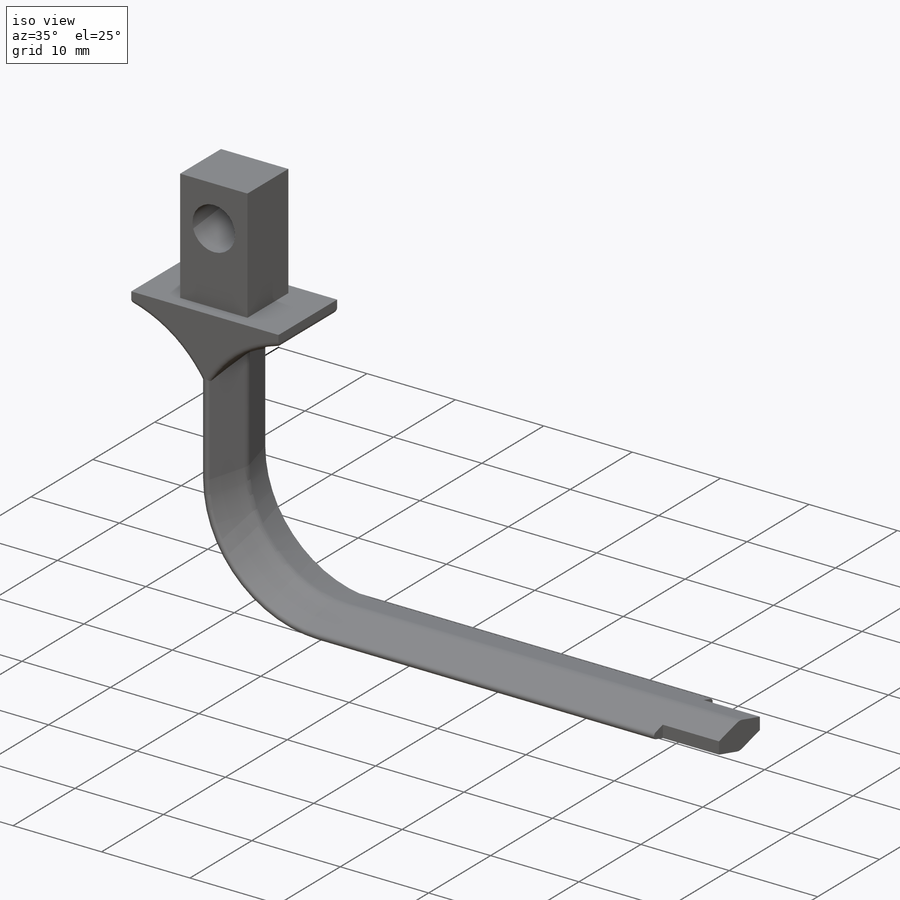
[diagram: iso view]
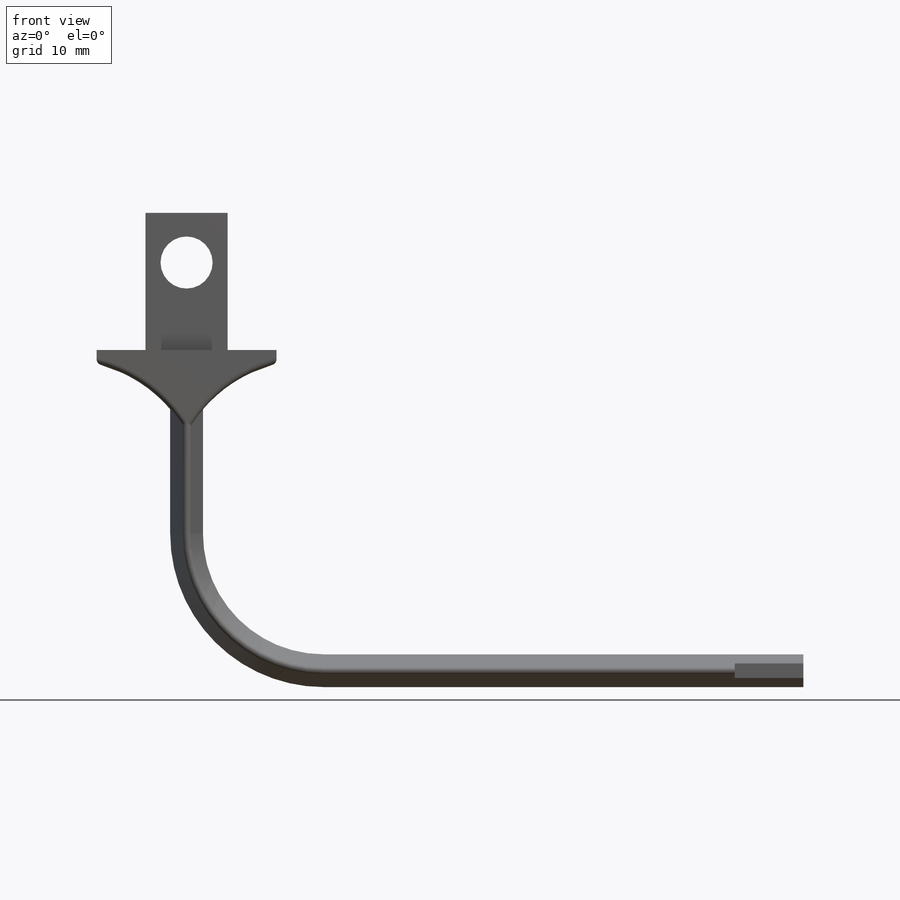
[diagram: front view]
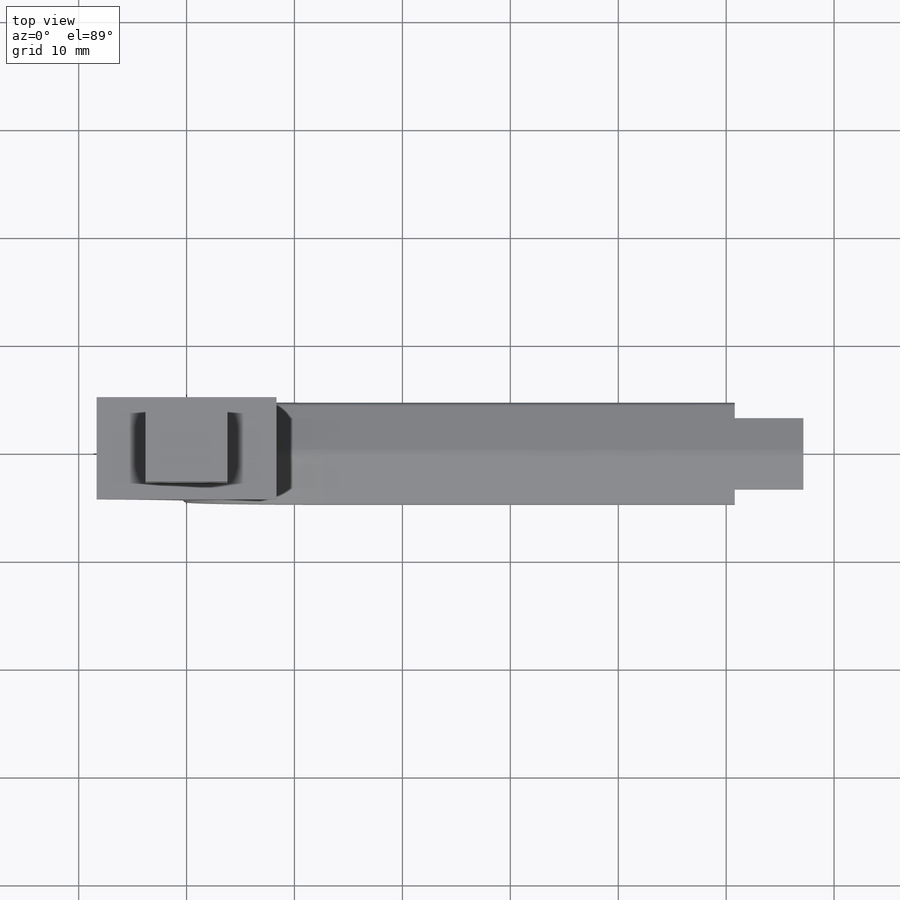
[diagram: top view]
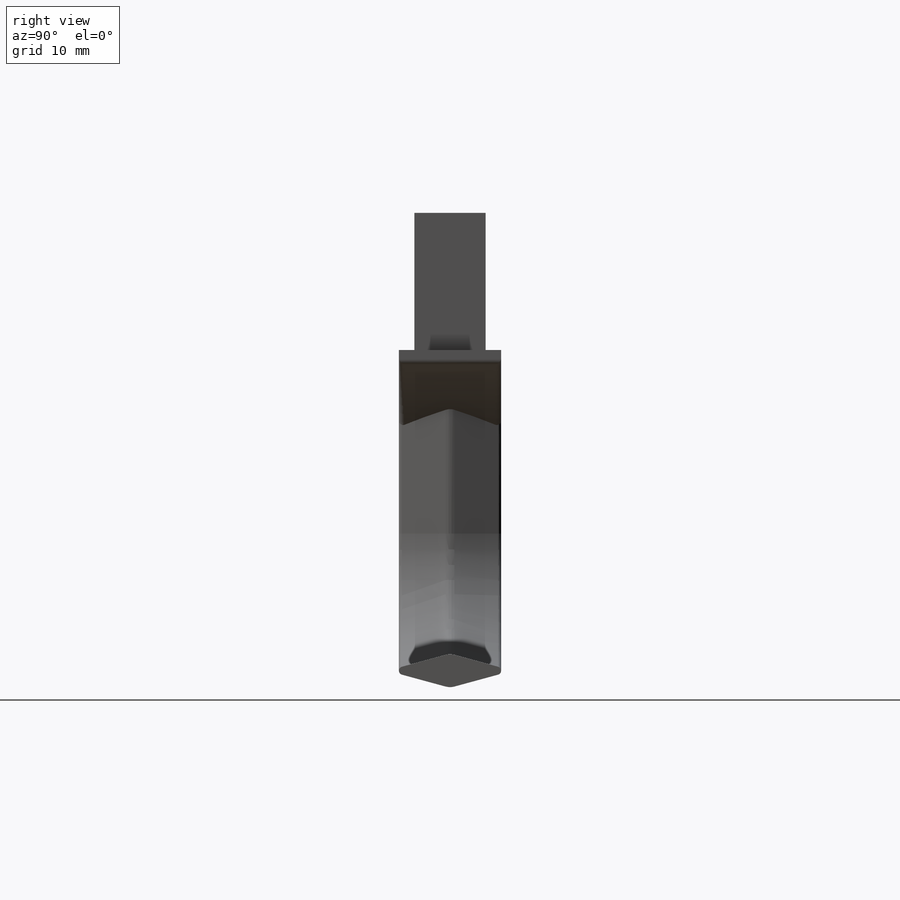
[diagram: right view]
SOLIDWORKS PART (.sldprt)
format: sldprt  version: not decoded by parser v0  size: 344,064 bytes
history: native  units: mm
features: sketch x7, extrude x4, material x1, plane x1, sweep x1, fillet x1 (+13 scaffold rows collapsed)
feature tree (28):
  scaffold x13  (default folders/planes/origin — collapsed)
  material  "Material <not specified>"
  sketch  "Sketch1"  dims[c1.D1=4.826mm c1.D2=2.1844mm c1.D3=12.7mm c1.D4=3.81mm c2.D2=2.1844mm]
  extrude  "Boss-Extrude1"  Depth=6.604mm
  sketch  "Sketch2"  dims[D1=16.6624mm D2=9.4488mm]
  sketch  "Sketch3"  dims[D3=12.7mm D1=29.718mm D2=43.18mm]
  plane  "Plane1"
  sketch  "Sketch4"  dims[D2=0.762mm D3=~1.523997mm D1=4.7371mm]
  sweep  "Sweep1"
  sketch  "Sketch6"  dims[c1.D1=8.9662mm c1.D2=~2.941197mm c2.D1=7.62mm c2.D2=1.27mm c2.D3=8.3312mm c2.D4=7.62mm]
  extrude  "Boss-Extrude2"  Depth=9.4742mm
  fillet  "Fillet2"  Radius=0.508mm
  sketch  "Sketch7"  dims[c1.D2=0.762mm c1.D3=~3.552349mm c2.D2=3.302mm c2.D1=0.0mm]
  extrude  "Boss-Extrude3"  Depth=13.97mm
  sketch  "Sketch8"  dims[D1=0.0mm]
  extrude  "Boss-Extrude4"  Depth=7.62mm
decode coverage: 12 of 13 modeling features carry decoded parameters
note: ~ marks probable driven/reference dimensions
note: suppression state not decoded; provenance and decode notes live in map.json
